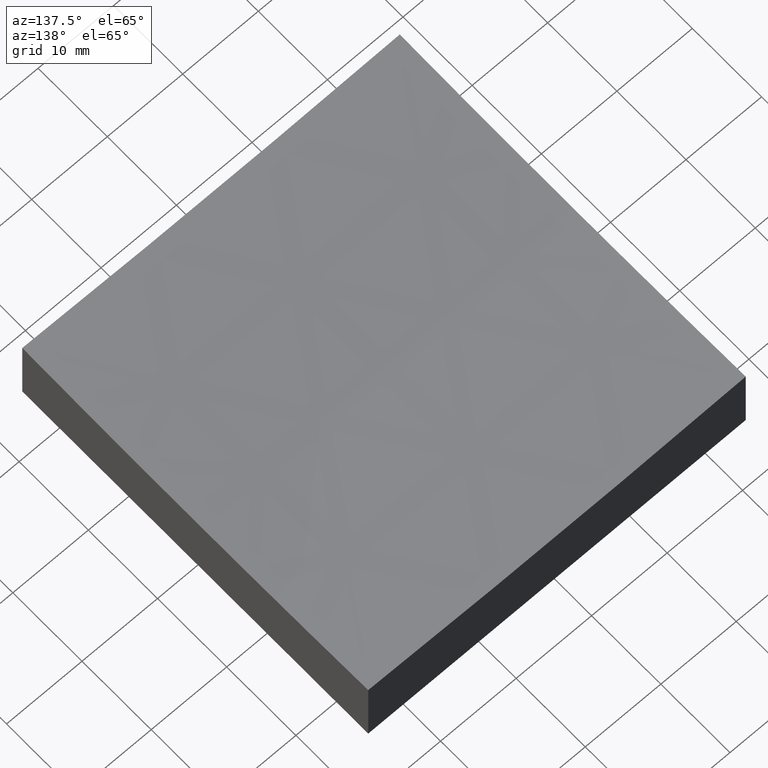
[diagram: clean part render]
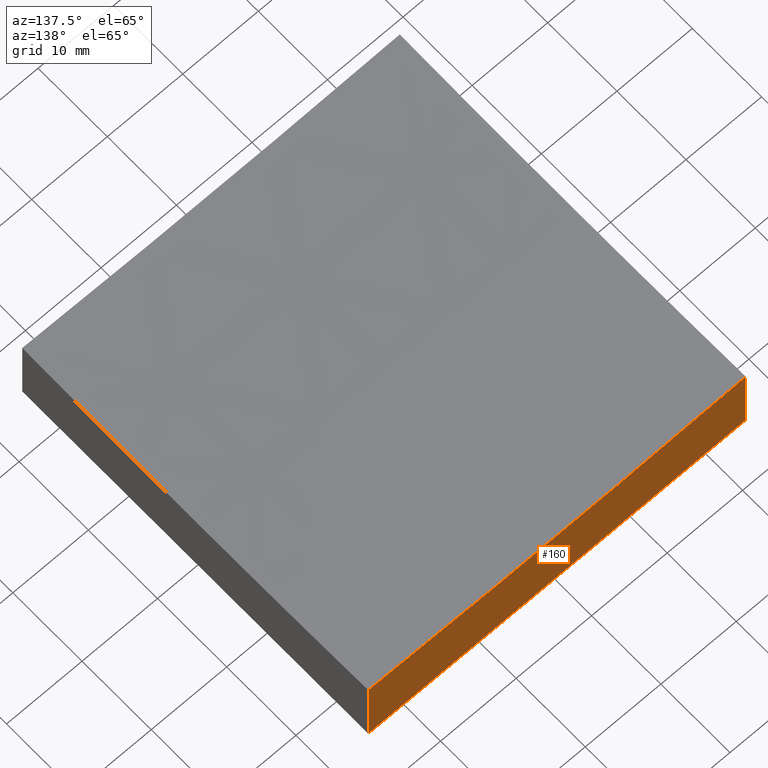
[diagram: same view with one face highlighted and labeled with its STEP entity id]
A machine part, auxiliary view. The second image highlights one B-rep face of the part: STEP entity #160.
In plain terms, the highlighted planar face has unit normal (0, 1, 0).
Its self-contained STEP definition (entity closure, byte-faithful):
#2 = ORIENTED_EDGE ( 'NONE', *, *, #240, .T. ) ;
#3 = CARTESIAN_POINT ( 'NONE',  ( 24.99999999999999645, 24.99999999999999645, 50.00000000000000000 ) ) ;
#11 = CARTESIAN_POINT ( 'NONE',  ( -25.00000000000000355, 24.99999999999999645, 0.0000000000000000000 ) ) ;
#16 = DIRECTION ( 'NONE',  ( 0.0000000000000000000, 0.0000000000000000000, 1.000000000000000000 ) ) ;
#25 = ORIENTED_EDGE ( 'NONE', *, *, #115, .F. ) ;
#32 = VECTOR ( 'NONE', #173, 1000.000000000000000 ) ;
#48 = CARTESIAN_POINT ( 'NONE',  ( -25.00000000000000355, 24.99999999999999645, 50.00000000000000000 ) ) ;
#52 = LINE ( 'NONE', #139, #113 ) ;
#60 = CARTESIAN_POINT ( 'NONE',  ( 24.99999999999999645, 24.99999999999999645, 10.04257246445305896 ) ) ;
#61 = EDGE_CURVE ( 'NONE', #248, #252, #68, .T. ) ;
#68 = CIRCLE ( 'NONE', #87, 599.4789404140898341 ) ;
#70 = DIRECTION ( 'NONE',  ( 0.0000000000000000000, 1.000000000000000000, 0.0000000000000000000 ) ) ;
#71 = EDGE_LOOP ( 'NONE', ( #222, #2, #191, #25 ) ) ;
#85 = CARTESIAN_POINT ( 'NONE',  ( 7.458099006807380620E-14, 24.99999999999999645, 609.0000000000000000 ) ) ;
#87 = AXIS2_PLACEMENT_3D ( 'NONE', #85, #123, #16 ) ;
#105 = LINE ( 'NONE', #11, #32 ) ;
#113 = VECTOR ( 'NONE', #227, 1000.000000000000000 ) ;
#114 = LINE ( 'NONE', #3, #213 ) ;
#115 = EDGE_CURVE ( 'NONE', #252, #131, #52, .T. ) ;
#123 = DIRECTION ( 'NONE',  ( 0.0000000000000000000, 1.000000000000000000, 0.0000000000000000000 ) ) ;
#131 = VERTEX_POINT ( 'NONE', #233 ) ;
#139 = CARTESIAN_POINT ( 'NONE',  ( -25.00000000000000355, 24.99999999999999645, 50.00000000000000000 ) ) ;
#145 = DIRECTION ( 'NONE',  ( 0.0000000000000000000, -0.0000000000000000000, 1.000000000000000000 ) ) ;
#150 = DIRECTION ( 'NONE',  ( -0.0000000000000000000, -0.0000000000000000000, -1.000000000000000000 ) ) ;
#151 = AXIS2_PLACEMENT_3D ( 'NONE', #48, #70, #145 ) ;
#160 = ADVANCED_FACE ( 'NONE', ( #247 ), #210, .T. ) ;
#173 = DIRECTION ( 'NONE',  ( 1.000000000000000000, 0.0000000000000000000, 0.0000000000000000000 ) ) ;
#191 = ORIENTED_EDGE ( 'NONE', *, *, #193, .F. ) ;
#193 = EDGE_CURVE ( 'NONE', #131, #211, #105, .T. ) ;
#195 = CARTESIAN_POINT ( 'NONE',  ( -25.00000000000000711, 24.99999999999999645, 10.04257246445305896 ) ) ;
#196 = CARTESIAN_POINT ( 'NONE',  ( 24.99999999999999645, 24.99999999999999645, 0.0000000000000000000 ) ) ;
#210 = PLANE ( 'NONE',  #151 ) ;
#211 = VERTEX_POINT ( 'NONE', #196 ) ;
#213 = VECTOR ( 'NONE', #150, 1000.000000000000000 ) ;
#222 = ORIENTED_EDGE ( 'NONE', *, *, #61, .F. ) ;
#227 = DIRECTION ( 'NONE',  ( -0.0000000000000000000, -0.0000000000000000000, -1.000000000000000000 ) ) ;
#233 = CARTESIAN_POINT ( 'NONE',  ( -25.00000000000000355, 24.99999999999999645, 0.0000000000000000000 ) ) ;
#240 = EDGE_CURVE ( 'NONE', #248, #211, #114, .T. ) ;
#247 = FACE_OUTER_BOUND ( 'NONE', #71, .T. ) ;
#248 = VERTEX_POINT ( 'NONE', #60 ) ;
#252 = VERTEX_POINT ( 'NONE', #195 ) ;